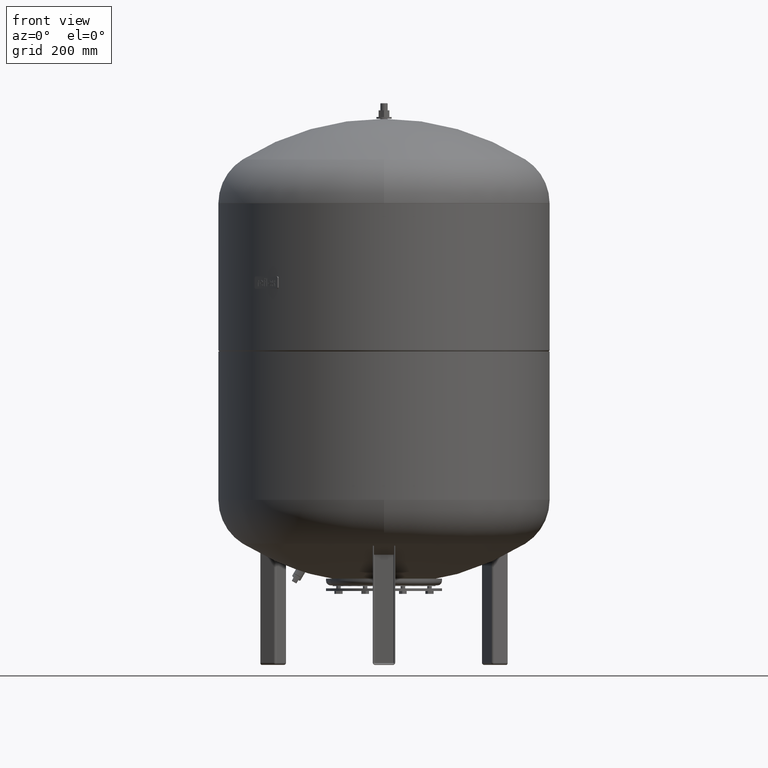
[diagram: clean part render]
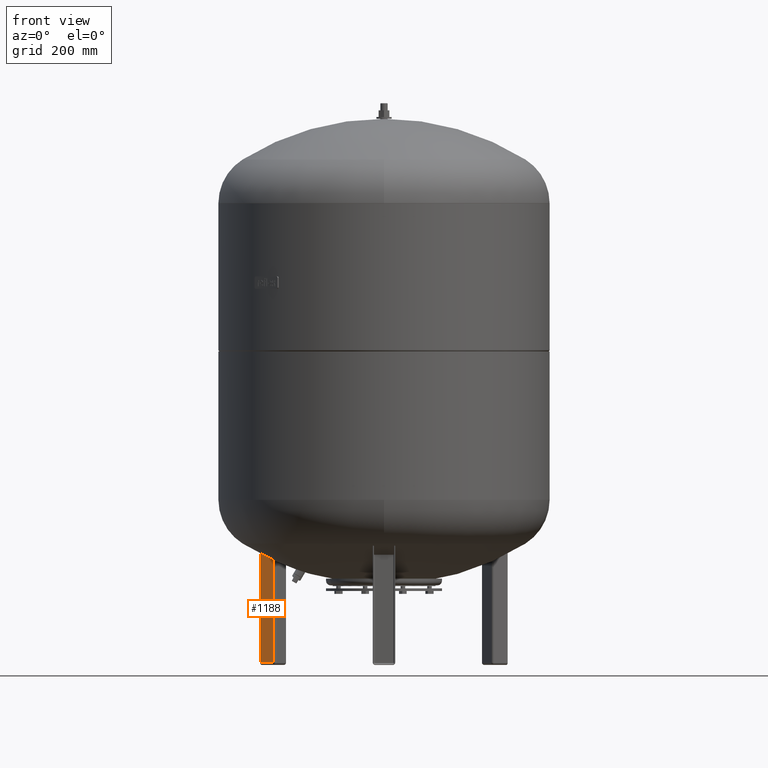
[diagram: same view with one face highlighted and labeled with its STEP entity id]
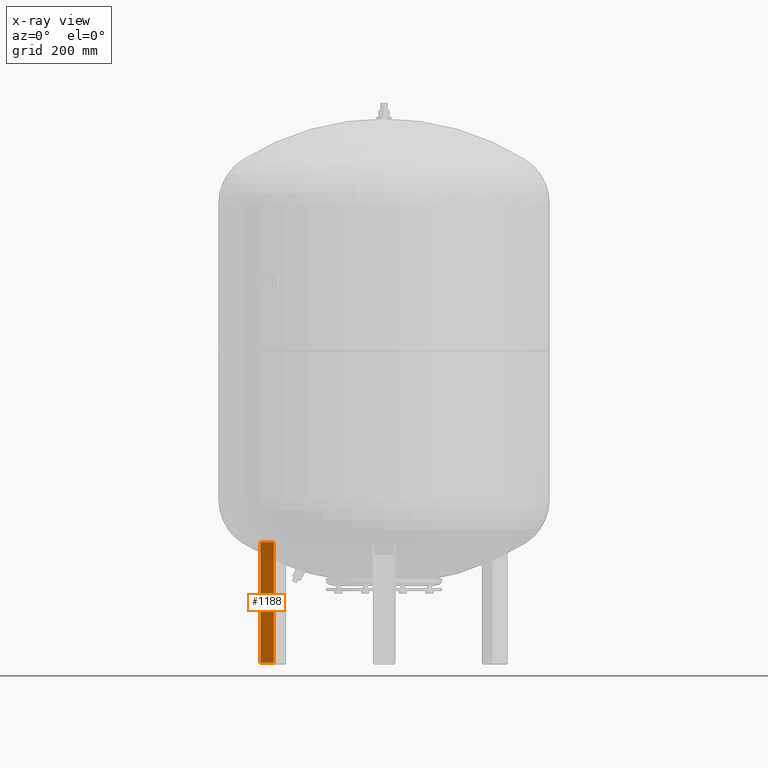
[diagram: x-ray of the same camera — body ghosted, the highlighted face saturated]
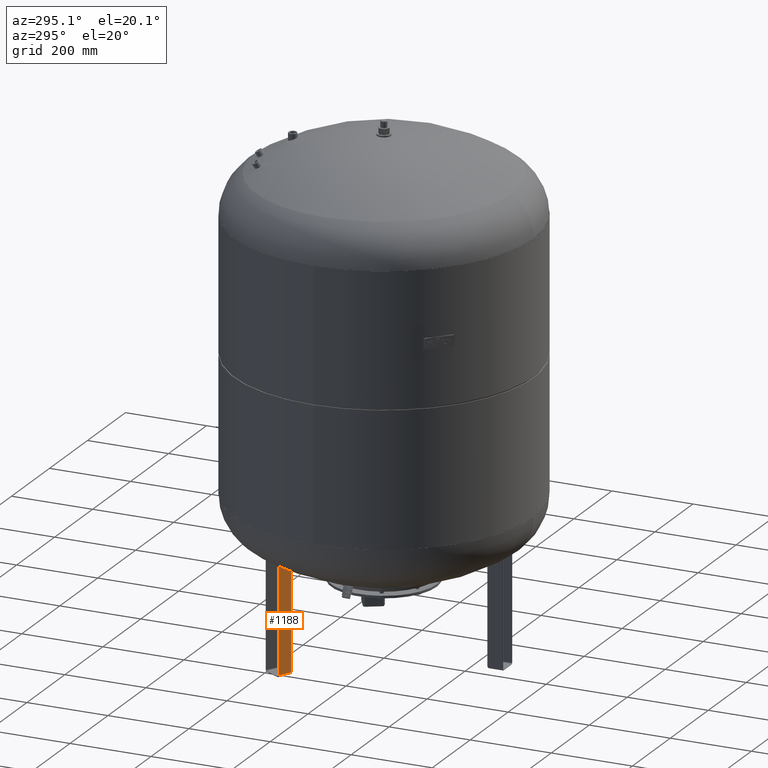
[diagram: same view with one face highlighted and labeled with its STEP entity id]
A machine part, front view. The second image highlights one B-rep face of the part: STEP entity #1188.
The next image is the same camera in x-ray: the body ghosted, the highlighted face saturated — about 11% of this face is hidden behind the body in this view.
A second angle (auxiliary view) of the same face is appended — the face is thin or edge-on in the first view.
In plain terms, the highlighted planar face has unit normal (-0.5, -0.866, 0).
Its self-contained STEP definition (entity closure, byte-faithful):
#250=CARTESIAN_POINT('',(-275.771722750469220,130.349364905389110,274.0));
#251=VERTEX_POINT('',#250);
#259=CARTESIAN_POINT('',(-246.326859021798270,113.349364905389120,274.0));
#260=VERTEX_POINT('',#259);
#261=CARTESIAN_POINT('',(-246.326859021798270,113.349364905389120,274.0));
#262=DIRECTION('',(-0.866025403784439,0.499999999999999,0.0));
#263=VECTOR('',#262,34.000000000000028);
#264=LINE('',#261,#263);
#265=EDGE_CURVE('',#260,#251,#264,.T.);
#695=CARTESIAN_POINT('',(-275.771722750469220,130.349364905389110,5.000000000000004));
#696=VERTEX_POINT('',#695);
#723=CARTESIAN_POINT('',(-275.771722750469220,130.349364905389110,5.000000000000004));
#724=DIRECTION('',(0.0,0.0,1.0));
#725=VECTOR('',#724,269.0);
#726=LINE('',#723,#725);
#727=EDGE_CURVE('',#696,#251,#726,.T.);
#923=CARTESIAN_POINT('',(-246.326859021798300,113.349364905389110,5.000000000000004));
#924=VERTEX_POINT('',#923);
#932=CARTESIAN_POINT('',(-246.326859021798300,113.349364905389110,5.000000000000004));
#933=DIRECTION('',(-0.866025403784439,0.500000000000000,0.0));
#934=VECTOR('',#933,34.000000000000007);
#935=LINE('',#932,#934);
#936=EDGE_CURVE('',#924,#696,#935,.T.);
#1058=CARTESIAN_POINT('',(-246.326859021798300,113.349364905389110,5.000000000000004));
#1059=DIRECTION('',(0.0,0.0,1.0));
#1060=VECTOR('',#1059,269.0);
#1061=LINE('',#1058,#1060);
#1062=EDGE_CURVE('',#924,#260,#1061,.T.);
#1177=CARTESIAN_POINT('',(-241.996732002876090,110.849364905389110,4.592425E-015));
#1178=DIRECTION('',(-0.500000000000000,-0.866025403784439,1.836970E-016));
#1179=DIRECTION('',(0.866025403784439,-0.500000000000000,-2.039447E-032));
#1180=AXIS2_PLACEMENT_3D('',#1177,#1178,#1179);
#1181=PLANE('',#1180);
#1182=ORIENTED_EDGE('',*,*,#727,.F.);
#1183=ORIENTED_EDGE('',*,*,#936,.F.);
#1184=ORIENTED_EDGE('',*,*,#1062,.T.);
#1185=ORIENTED_EDGE('',*,*,#265,.T.);
#1186=EDGE_LOOP('',(#1182,#1183,#1184,#1185));
#1187=FACE_OUTER_BOUND('',#1186,.T.);
#1188=ADVANCED_FACE('',(#1187),#1181,.T.);